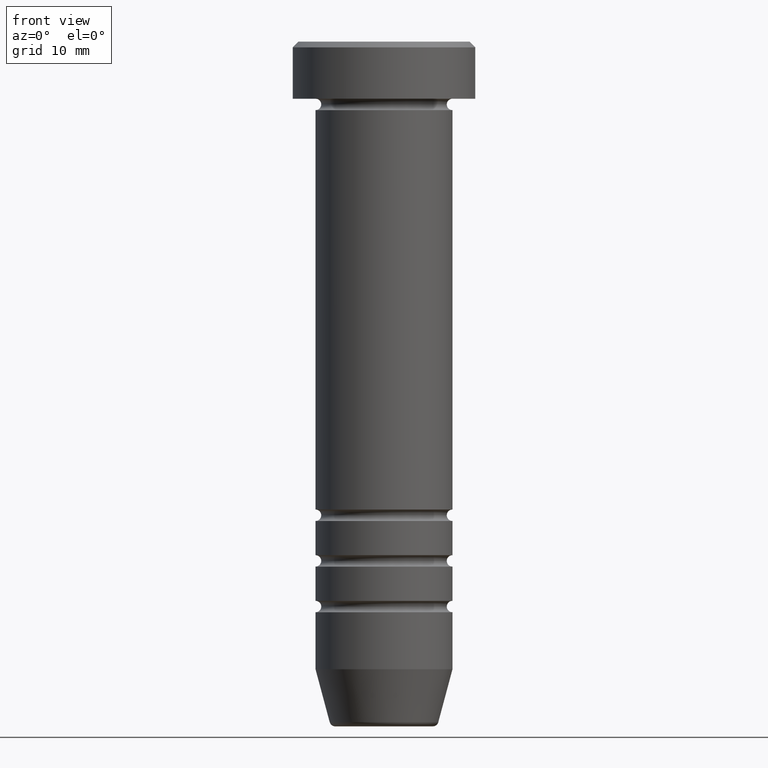
[diagram: clean part render]
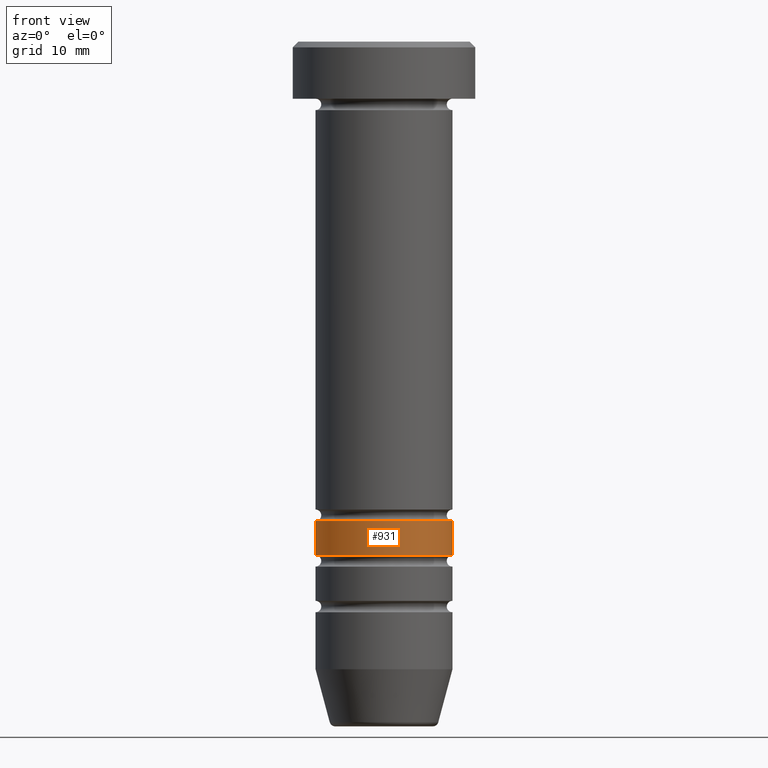
[diagram: same view with one face highlighted and labeled with its STEP entity id]
A machine part, front view. The second image highlights one B-rep face of the part: STEP entity #931.
In plain terms, the highlighted cylindrical surface (partial cylindrical patch) has radius 6 mm, axis along (-0, -0, 1).
Its self-contained STEP definition (entity closure, byte-faithful):
#46 = ORIENTED_EDGE ( 'NONE', *, *, #460, .T. ) ;
#61 = AXIS2_PLACEMENT_3D ( 'NONE', #666, #557, #472 ) ;
#117 = VERTEX_POINT ( 'NONE', #137 ) ;
#121 = CARTESIAN_POINT ( 'NONE',  ( -5.999999999999998224, 7.347880794884118750E-16, -45.00000000000000000 ) ) ;
#137 = CARTESIAN_POINT ( 'NONE',  ( 6.000000000000000000, 0.000000000000000000, -42.00000000000000711 ) ) ;
#172 = ORIENTED_EDGE ( 'NONE', *, *, #381, .F. ) ;
#183 = CIRCLE ( 'NONE', #841, 5.999999999999998224 ) ;
#249 = CIRCLE ( 'NONE', #61, 6.000000000000000000 ) ;
#307 = VECTOR ( 'NONE', #786, 1000.000000000000000 ) ;
#329 = FACE_OUTER_BOUND ( 'NONE', #901, .T. ) ;
#371 = ORIENTED_EDGE ( 'NONE', *, *, #501, .T. ) ;
#381 = EDGE_CURVE ( 'NONE', #843, #522, #880, .T. ) ;
#460 = EDGE_CURVE ( 'NONE', #843, #958, #183, .T. ) ;
#472 = DIRECTION ( 'NONE',  ( 1.000000000000000000, 0.000000000000000000, 0.000000000000000000 ) ) ;
#494 = AXIS2_PLACEMENT_3D ( 'NONE', #582, #905, #823 ) ;
#498 = LINE ( 'NONE', #1051, #811 ) ;
#501 = EDGE_CURVE ( 'NONE', #958, #117, #498, .T. ) ;
#522 = VERTEX_POINT ( 'NONE', #861 ) ;
#544 = CARTESIAN_POINT ( 'NONE',  ( -5.999999999999999112, 7.347880794884118750E-16, 0.000000000000000000 ) ) ;
#557 = DIRECTION ( 'NONE',  ( -0.000000000000000000, -0.000000000000000000, 1.000000000000000000 ) ) ;
#574 = DIRECTION ( 'NONE',  ( -0.000000000000000000, -0.000000000000000000, 1.000000000000000000 ) ) ;
#582 = CARTESIAN_POINT ( 'NONE',  ( 0.000000000000000000, 0.000000000000000000, 0.000000000000000000 ) ) ;
#636 = CARTESIAN_POINT ( 'NONE',  ( 5.999999999999998224, 0.000000000000000000, -45.00000000000000000 ) ) ;
#643 = EDGE_CURVE ( 'NONE', #522, #117, #249, .T. ) ;
#650 = DIRECTION ( 'NONE',  ( -0.000000000000000000, -0.000000000000000000, 1.000000000000000000 ) ) ;
#659 = CARTESIAN_POINT ( 'NONE',  ( 0.000000000000000000, 0.000000000000000000, -45.00000000000000000 ) ) ;
#666 = CARTESIAN_POINT ( 'NONE',  ( 0.000000000000000000, 0.000000000000000000, -42.00000000000000711 ) ) ;
#738 = DIRECTION ( 'NONE',  ( 1.000000000000000000, 0.000000000000000000, 0.000000000000000000 ) ) ;
#786 = DIRECTION ( 'NONE',  ( -0.000000000000000000, -0.000000000000000000, 1.000000000000000000 ) ) ;
#811 = VECTOR ( 'NONE', #650, 1000.000000000000000 ) ;
#823 = DIRECTION ( 'NONE',  ( 1.000000000000000000, 0.000000000000000000, 0.000000000000000000 ) ) ;
#841 = AXIS2_PLACEMENT_3D ( 'NONE', #659, #574, #738 ) ;
#843 = VERTEX_POINT ( 'NONE', #121 ) ;
#861 = CARTESIAN_POINT ( 'NONE',  ( -6.000000000000000888, 7.347880794884120722E-16, -42.00000000000000711 ) ) ;
#880 = LINE ( 'NONE', #544, #307 ) ;
#901 = EDGE_LOOP ( 'NONE', ( #172, #46, #371, #1031 ) ) ;
#905 = DIRECTION ( 'NONE',  ( -0.000000000000000000, -0.000000000000000000, 1.000000000000000000 ) ) ;
#931 = ADVANCED_FACE ( 'NONE', ( #329 ), #990, .T. ) ;
#958 = VERTEX_POINT ( 'NONE', #636 ) ;
#990 = CYLINDRICAL_SURFACE ( 'NONE', #494, 5.999999999999999112 ) ;
#1031 = ORIENTED_EDGE ( 'NONE', *, *, #643, .F. ) ;
#1051 = CARTESIAN_POINT ( 'NONE',  ( 5.999999999999999112, 0.000000000000000000, 0.000000000000000000 ) ) ;